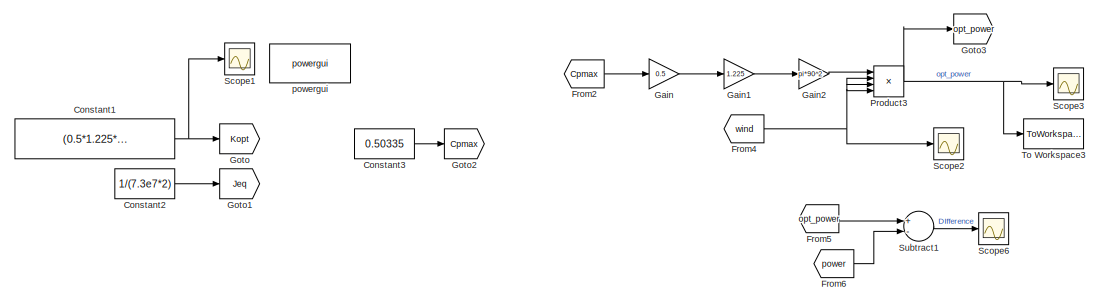
[diagram: root canvas - part 1/2, full width, top band]
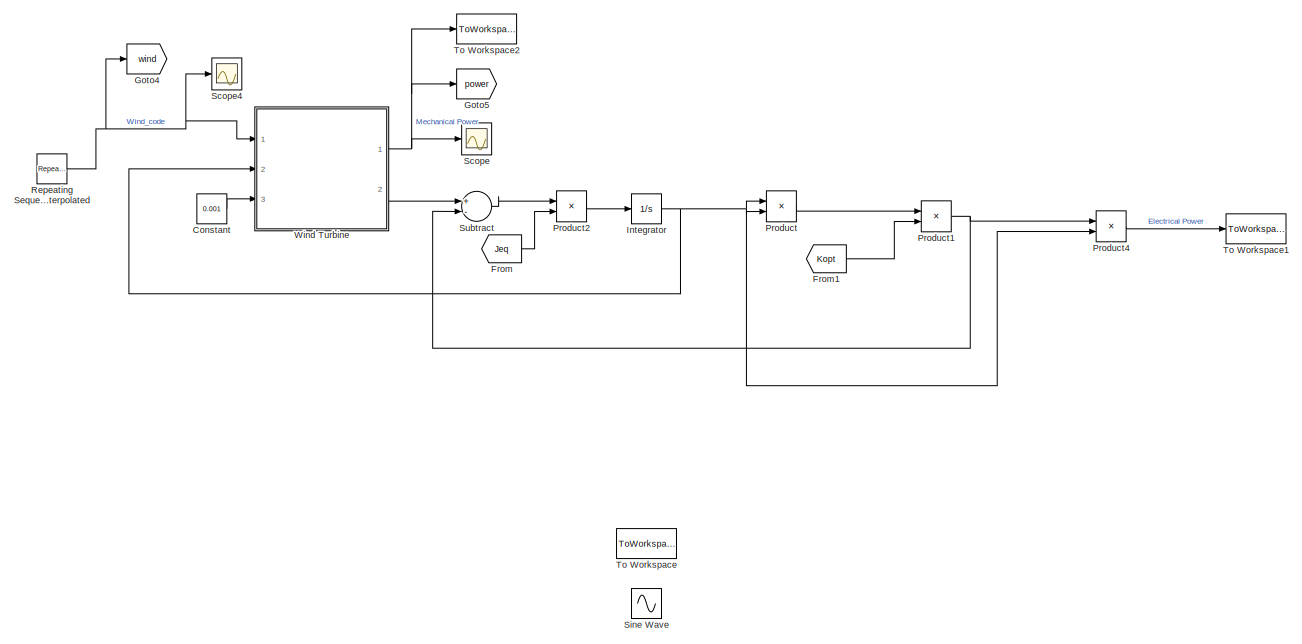
[diagram: root canvas - part 2/2, full width, middle band]
MODEL slx_2063fa68939f
KIND model
CONFIG AbsTol = auto
CONFIG EnableMultiTasking = off
CONFIG FixedStep = 0.1
CONFIG MaxStep = auto
CONFIG MinStep = auto
CONFIG RelTol = 1e-3
CONFIG SampleTimeConstraint = Unconstrained
CONFIG Solver = FixedStepAuto
CONFIG SolverName = FixedStepAuto
CONFIG StartTime = 0.0
CONFIG StopTime = 3600
BLOCK [Constant] Constant
  Value = 0.001
BLOCK [Constant] Constant1
  Value = (0.5*1.225*pi*(90^5)*0.5/(9.559^3))*0.9
BLOCK [Constant] Constant2
  Value = 1/(7.3e7*2)
BLOCK [Constant] Constant3
  Value = 0.50335
BLOCK [From] From
  GotoTag = Jeq
BLOCK [From] From1
  GotoTag = Kopt
  TagVisibility = global
BLOCK [From] From2
  GotoTag = Cpmax
BLOCK [From] From4
  GotoTag = wind
BLOCK [From] From5
  GotoTag = opt_power
BLOCK [From] From6
  GotoTag = power
BLOCK [Gain] Gain
  Gain = 0.5
  OutDataTypeStr = Inherit: Inherit via internal rule
  ParamDataTypeStr = Inherit: Inherit via internal rule
  SaturateOnIntegerOverflow = off
BLOCK [Gain] Gain1
  Gain = 1.225
  OutDataTypeStr = Inherit: Inherit via internal rule
  ParamDataTypeStr = Inherit: Inherit via internal rule
  SaturateOnIntegerOverflow = off
BLOCK [Gain] Gain2
  Gain = pi*90^2
  OutDataTypeStr = Inherit: Inherit via internal rule
  ParamDataTypeStr = Inherit: Inherit via internal rule
  SaturateOnIntegerOverflow = off
BLOCK [Goto] Goto
  GotoTag = Kopt
  IconDisplay = Tag and signal name
  TagVisibility = global
BLOCK [Goto] Goto1
  GotoTag = Jeq
BLOCK [Goto] Goto2
  GotoTag = Cpmax
BLOCK [Goto] Goto3
  GotoTag = opt_power
BLOCK [Goto] Goto4
  GotoTag = wind
BLOCK [Goto] Goto5
  GotoTag = power
BLOCK [Integrator] Integrator
  InitialCondition = 6.5043*V(1)/90
  Ports = [1, 1]
BLOCK [Product] Product
  InputSameDT = off
  OutDataTypeStr = Inherit: Inherit via internal rule
  Ports = [2, 1]
  RndMeth = Floor
  SaturateOnIntegerOverflow = off
BLOCK [Product] Product1
  InputSameDT = off
  OutDataTypeStr = Inherit: Inherit via internal rule
  Ports = [2, 1]
  RndMeth = Floor
  SaturateOnIntegerOverflow = off
BLOCK [Product] Product2
  InputSameDT = off
  OutDataTypeStr = Inherit: Inherit via internal rule
  Ports = [2, 1]
  RndMeth = Floor
  SaturateOnIntegerOverflow = off
BLOCK [Product] Product3
  InputSameDT = off
  Inputs = 4
  OutDataTypeStr = Inherit: Inherit via internal rule
  Ports = [4, 1]
  RndMeth = Floor
  SaturateOnIntegerOverflow = off
BLOCK [Product] Product4
  InputSameDT = off
  OutDataTypeStr = Inherit: Inherit via internal rule
  Ports = [2, 1]
  RndMeth = Floor
  SaturateOnIntegerOverflow = off
BLOCK [Reference] Repeating Sequence Interpolated  REF=simulink/Sources/Repeating
Sequence
Interpolated
  Ports = [0, 1]
  SourceBlock = simulink/Sources/Repeating\nSequence\nInterpolated
  SourceProductBaseCode = SL
  SourceProductName = Simulink
  SourceType = Repeating Sequence Interpolated
BLOCK [Scope] Scope
  Floating = off
  NumInputPorts = 1
  Ports = [1]
  ScopeSpecificationString = Simulink.scopes.TimeScopeBlockCfg('CurrentConfiguration', extmgr.ConfigurationSet(extmgr.Configuration('Core','General UI',true),extmgr.Configuration('Core','Source UI',true),extmgr.Configuration('Sources','WiredSimulink',true),extmgr.Configuration('Visuals','Time Domain',true,'SerializedDisplays',{struct('MinYLimReal','-284969.75433','MaxYLimReal','6331853.73557','YLabelReal','','MinYLimMag','   ...<+1396ch>
BLOCK [Scope] Scope1
  Floating = off
  NumInputPorts = 1
  Ports = [1]
  ScopeSpecificationString = Simulink.scopes.TimeScopeBlockCfg('CurrentConfiguration', extmgr.ConfigurationSet(extmgr.Configuration('Core','General UI',true),extmgr.Configuration('Core','Source UI',true),extmgr.Configuration('Sources','WiredSimulink',true,'DataLoggingVariableName','ScopeData1'),extmgr.Configuration('Visuals','Time Domain',true,'SerializedDisplays',{struct('MinYLimReal','6504305.3673','MaxYLimReal','6504320.88...<+1458ch>
BLOCK [Scope] Scope2
  Floating = off
  NumInputPorts = 1
  Ports = [1]
  ScopeSpecificationString = Simulink.scopes.TimeScopeBlockCfg('CurrentConfiguration', extmgr.ConfigurationSet(extmgr.Configuration('Core','General UI',true),extmgr.Configuration('Core','Source UI',true),extmgr.Configuration('Sources','WiredSimulink',true,'DataLoggingVariableName','ScopeData2'),extmgr.Configuration('Visuals','Time Domain',true,'SerializedDisplays',{struct('MinYLimReal','-1.23767','MaxYLimReal','11.23767','YLa...<+1382ch>
BLOCK [Scope] Scope3
  Floating = off
  NumInputPorts = 1
  Ports = [1]
  ScopeSpecificationString = Simulink.scopes.TimeScopeBlockCfg('CurrentConfiguration', extmgr.ConfigurationSet(extmgr.Configuration('Core','General UI',true),extmgr.Configuration('Core','Source UI',true),extmgr.Configuration('Sources','WiredSimulink',true,'DataLoggingVariableName','ScopeData3'),extmgr.Configuration('Visuals','Time Domain',true,'SerializedDisplays',{struct('MinYLimReal','-977766.06619','MaxYLimReal','8799894.6...<+1409ch>
BLOCK [Scope] Scope4
  Floating = off
  NumInputPorts = 1
  Ports = [1]
  ScopeSpecificationString = Simulink.scopes.TimeScopeBlockCfg('CurrentConfiguration', extmgr.ConfigurationSet(extmgr.Configuration('Core','General UI',true),extmgr.Configuration('Core','Source UI',true),extmgr.Configuration('Sources','WiredSimulink',true,'DataLoggingVariableName','ScopeData1'),extmgr.Configuration('Visuals','Time Domain',true,'SerializedDisplays',{struct('MinYLimReal','3.18589','MaxYLimReal','8.78405','YLabe...<+1395ch>
BLOCK [Scope] Scope6
  Floating = off
  NumInputPorts = 1
  Ports = [1]
  ScopeSpecificationString = Simulink.scopes.TimeScopeBlockCfg('CurrentConfiguration', extmgr.ConfigurationSet(extmgr.Configuration('Core','General UI',true),extmgr.Configuration('Core','Source UI',true),extmgr.Configuration('Sources','WiredSimulink',true,'DataLoggingVariableName','ScopeData3'),extmgr.Configuration('Visuals','Time Domain',true),extmgr.Configuration('Tools','Plot Navigation',true),extmgr.Configuration('Tools',...<+40ch>
BLOCK [Sin] Sine Wave
  Amplitude = 3
  Bias = 8
  Commented = on
  Frequency = 2*pi/200
  Ports = [0, 1]
  SampleTime = 0
BLOCK [Sum] Subtract
  InputSameDT = off
  Inputs = +-
  OutDataTypeStr = Inherit: Inherit via internal rule
  Ports = [2, 1]
  SaturateOnIntegerOverflow = off
BLOCK [Sum] Subtract1
  InputSameDT = off
  Inputs = +-
  OutDataTypeStr = Inherit: Inherit via internal rule
  Ports = [2, 1]
  SaturateOnIntegerOverflow = off
BLOCK [ToWorkspace] To Workspace
  Commented = on
  FixptAsFi = on
  MaxDataPoints = inf
  Ports = [1]
  SampleTime = -1
  SaveFormat = Timeseries
  VariableName = simout
BLOCK [ToWorkspace] To Workspace1
  FixptAsFi = on
  MaxDataPoints = inf
  Ports = [1]
  SampleTime = 1
  VariableName = electrical_power
BLOCK [ToWorkspace] To Workspace2
  FixptAsFi = on
  MaxDataPoints = inf
  Ports = [1]
  SampleTime = 1
  VariableName = mechanical_power
BLOCK [ToWorkspace] To Workspace3
  FixptAsFi = on
  MaxDataPoints = inf
  Ports = [1]
  SampleTime = 1
  VariableName = opt_power
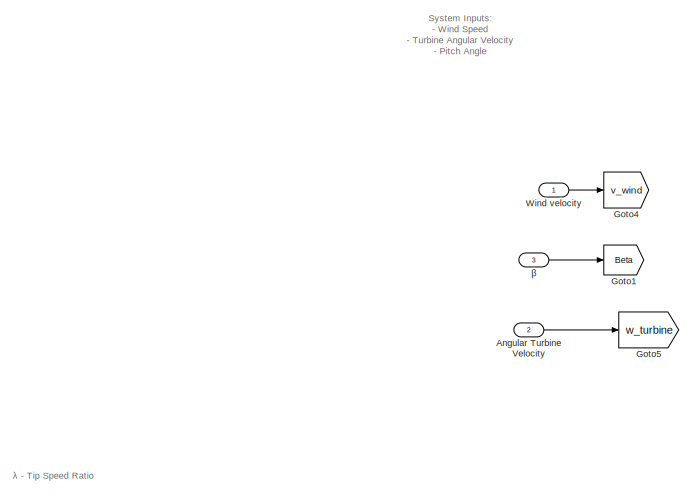
[diagram: Wind Turbine  - part 1/5, top left region]
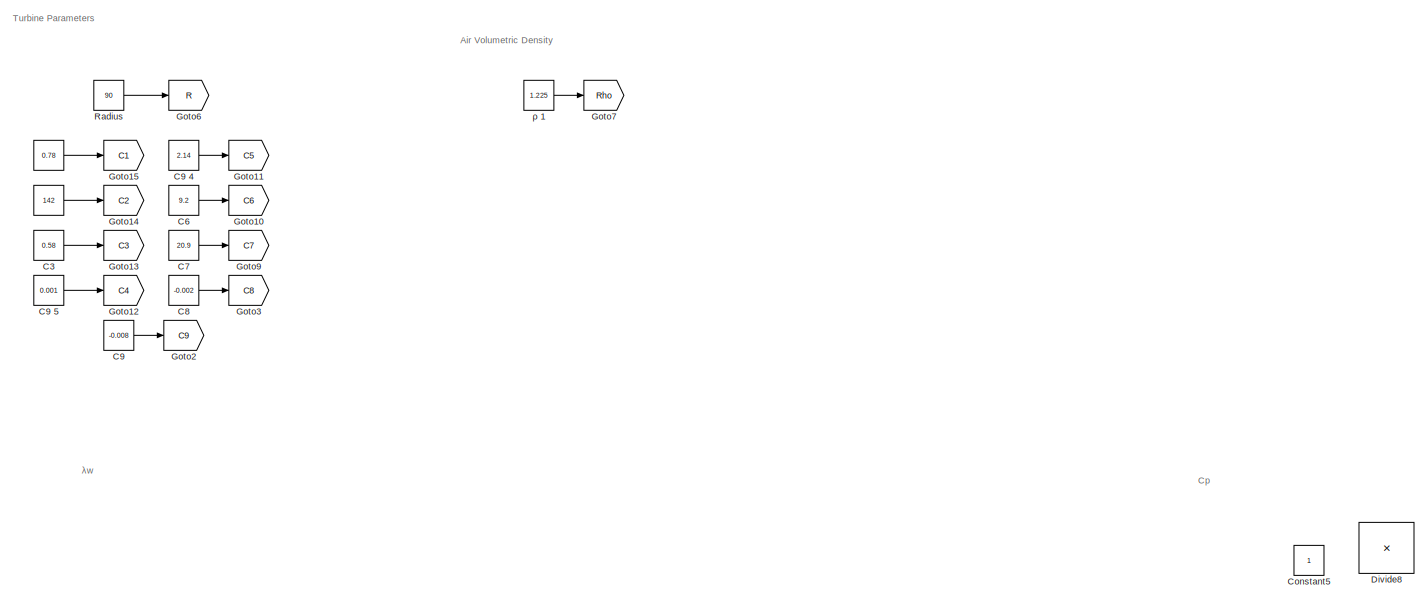
[diagram: Wind Turbine  - part 2/5, top center region]
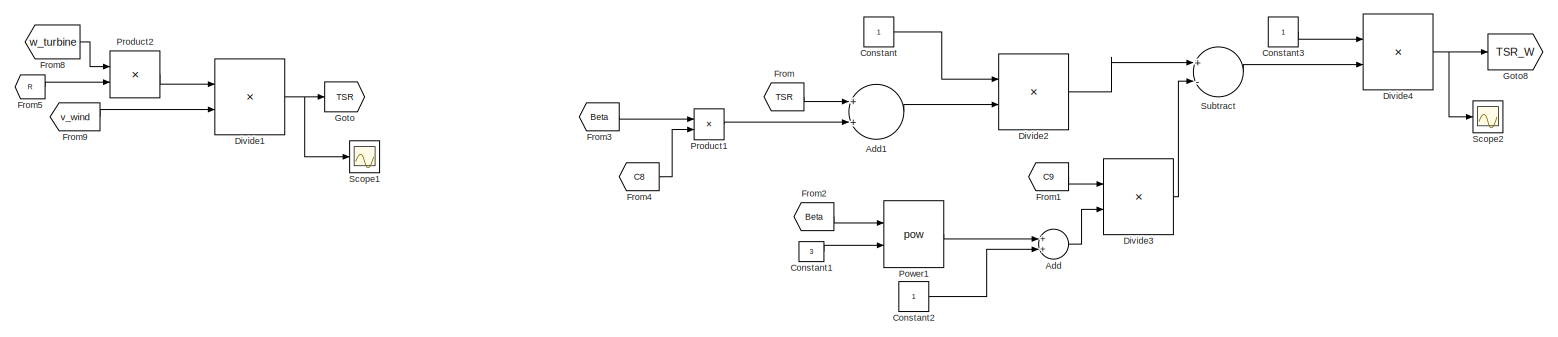
[diagram: Wind Turbine  - part 3/5, middle left region]
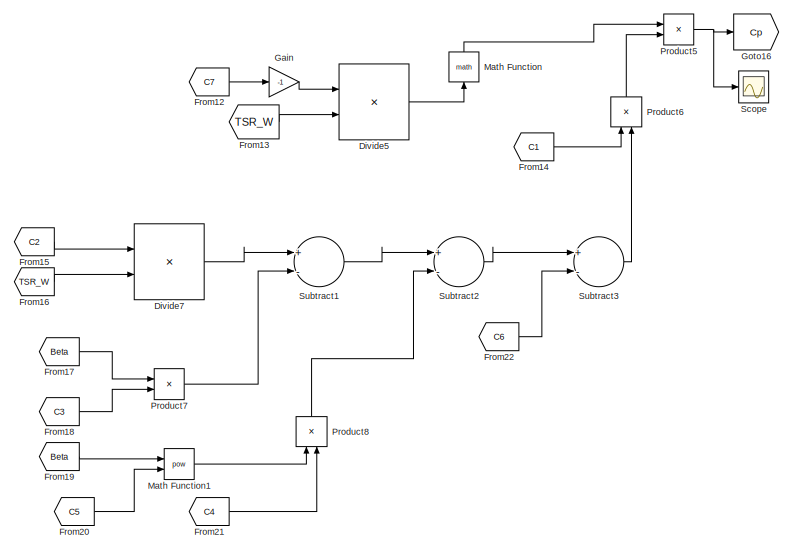
[diagram: Wind Turbine  - part 4/5, middle right region]
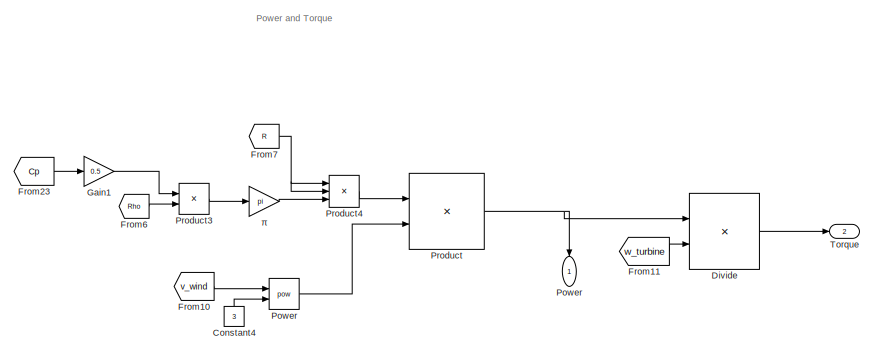
[diagram: Wind Turbine  - part 5/5, bottom center region]
BLOCK [SubSystem] Wind Turbine 
  Ports = [3, 2]
  RequestExecContextInheritance = off
BLOCK [Constant] Wind Turbine / 
  Value = 0.78
BLOCK [Sum] Wind Turbine /Add
  InputSameDT = off
  OutDataTypeStr = Inherit: Inherit via internal rule
  Ports = [2, 1]
  SaturateOnIntegerOverflow = off
BLOCK [Sum] Wind Turbine /Add1
  InputSameDT = off
  OutDataTypeStr = Inherit: Inherit via internal rule
  Ports = [2, 1]
  SaturateOnIntegerOverflow = off
BLOCK [Inport] Wind Turbine /Angular Turbine Velocity 
  IconDisplay = Port number
  Port = 2
BLOCK [Constant] Wind Turbine /C3 
  Value = 0.58
BLOCK [Constant] Wind Turbine /C6 
  Value = 9.2
BLOCK [Constant] Wind Turbine /C7 
  Value = 20.9
BLOCK [Constant] Wind Turbine /C8 
  Value = -0.002
BLOCK [Constant] Wind Turbine /C9 
  Value = -0.008
BLOCK [Constant] Wind Turbine /C9 4
  Value = 2.14
BLOCK [Constant] Wind Turbine /C9 5
  Value = 0.001
BLOCK [Constant] Wind Turbine /Constant
BLOCK [Constant] Wind Turbine /Constant1
  Value = 3
BLOCK [Constant] Wind Turbine /Constant2
BLOCK [Constant] Wind Turbine /Constant3
BLOCK [Constant] Wind Turbine /Constant4
  Value = 3
BLOCK [Constant] Wind Turbine /Constant5
  Commented = on
BLOCK [Product] Wind Turbine /Divide
  InputSameDT = off
  Inputs = */
  OutDataTypeStr = Inherit: Inherit via internal rule
  Ports = [2, 1]
  RndMeth = Floor
  SaturateOnIntegerOverflow = off
BLOCK [Product] Wind Turbine /Divide1
  InputSameDT = off
  Inputs = */
  OutDataTypeStr = Inherit: Inherit via internal rule
  Ports = [2, 1]
  RndMeth = Floor
  SaturateOnIntegerOverflow = off
BLOCK [Product] Wind Turbine /Divide2
  InputSameDT = off
  Inputs = */
  OutDataTypeStr = Inherit: Inherit via internal rule
  Ports = [2, 1]
  RndMeth = Floor
  SaturateOnIntegerOverflow = off
BLOCK [Product] Wind Turbine /Divide3
  InputSameDT = off
  Inputs = */
  OutDataTypeStr = Inherit: Inherit via internal rule
  Ports = [2, 1]
  RndMeth = Floor
  SaturateOnIntegerOverflow = off
BLOCK [Product] Wind Turbine /Divide4
  InputSameDT = off
  Inputs = */
  OutDataTypeStr = Inherit: Inherit via internal rule
  Ports = [2, 1]
  RndMeth = Floor
  SaturateOnIntegerOverflow = off
BLOCK [Product] Wind Turbine /Divide5
  InputSameDT = off
  Inputs = */
  OutDataTypeStr = Inherit: Inherit via internal rule
  Ports = [2, 1]
  RndMeth = Floor
  SaturateOnIntegerOverflow = off
BLOCK [Product] Wind Turbine /Divide7
  InputSameDT = off
  Inputs = */
  OutDataTypeStr = Inherit: Inherit via internal rule
  Ports = [2, 1]
  RndMeth = Floor
  SaturateOnIntegerOverflow = off
BLOCK [Product] Wind Turbine /Divide8
  Commented = on
  InputSameDT = off
  Inputs = */
  OutDataTypeStr = Inherit: Inherit via internal rule
  Ports = [2, 1]
  RndMeth = Floor
  SaturateOnIntegerOverflow = off
BLOCK [From] Wind Turbine /From
  GotoTag = TSR
BLOCK [From] Wind Turbine /From1
  GotoTag = C9
BLOCK [From] Wind Turbine /From10
  GotoTag = v_wind
BLOCK [From] Wind Turbine /From11
  GotoTag = w_turbine
BLOCK [From] Wind Turbine /From12
  GotoTag = C7
BLOCK [From] Wind Turbine /From13
  GotoTag = TSR_W
BLOCK [From] Wind Turbine /From14
  GotoTag = C1
BLOCK [From] Wind Turbine /From15
  GotoTag = C2
BLOCK [From] Wind Turbine /From16
  GotoTag = TSR_W
BLOCK [From] Wind Turbine /From17
  GotoTag = Beta
BLOCK [From] Wind Turbine /From18
  GotoTag = C3
BLOCK [From] Wind Turbine /From19
  GotoTag = Beta
BLOCK [From] Wind Turbine /From2
  GotoTag = Beta
BLOCK [From] Wind Turbine /From20
  GotoTag = C5
BLOCK [From] Wind Turbine /From21
  GotoTag = C4
BLOCK [From] Wind Turbine /From22
  GotoTag = C6
BLOCK [From] Wind Turbine /From23
  GotoTag = Cp
BLOCK [From] Wind Turbine /From3
  GotoTag = Beta
BLOCK [From] Wind Turbine /From4
  GotoTag = C8
BLOCK [From] Wind Turbine /From5
  GotoTag = R
BLOCK [From] Wind Turbine /From6
  GotoTag = Rho
BLOCK [From] Wind Turbine /From7
  GotoTag = R
BLOCK [From] Wind Turbine /From8
  GotoTag = w_turbine
BLOCK [From] Wind Turbine /From9
  GotoTag = v_wind
BLOCK [Gain] Wind Turbine /Gain
  Gain = -1
  OutDataTypeStr = Inherit: Inherit via internal rule
  ParamDataTypeStr = Inherit: Inherit via internal rule
  SaturateOnIntegerOverflow = off
BLOCK [Gain] Wind Turbine /Gain1
  Gain = 0.5
  OutDataTypeStr = Inherit: Inherit via internal rule
  ParamDataTypeStr = Inherit: Inherit via internal rule
  SaturateOnIntegerOverflow = off
BLOCK [Goto] Wind Turbine /Goto
  GotoTag = TSR
BLOCK [Goto] Wind Turbine /Goto1
  GotoTag = Beta
BLOCK [Goto] Wind Turbine /Goto10
  GotoTag = C6
BLOCK [Goto] Wind Turbine /Goto11
  GotoTag = C5
BLOCK [Goto] Wind Turbine /Goto12
  GotoTag = C4
BLOCK [Goto] Wind Turbine /Goto13
  GotoTag = C3
BLOCK [Goto] Wind Turbine /Goto14
  GotoTag = C2
BLOCK [Goto] Wind Turbine /Goto15
  GotoTag = C1
BLOCK [Goto] Wind Turbine /Goto16
  GotoTag = Cp
BLOCK [Goto] Wind Turbine /Goto2
  GotoTag = C9
BLOCK [Goto] Wind Turbine /Goto3
  GotoTag = C8
BLOCK [Goto] Wind Turbine /Goto4
  GotoTag = v_wind
BLOCK [Goto] Wind Turbine /Goto5
  GotoTag = w_turbine
BLOCK [Goto] Wind Turbine /Goto6
  GotoTag = R
BLOCK [Goto] Wind Turbine /Goto7
  GotoTag = Rho
BLOCK [Goto] Wind Turbine /Goto8
  GotoTag = TSR_W
BLOCK [Goto] Wind Turbine /Goto9
  GotoTag = C7
BLOCK [Math] Wind Turbine /Math Function
  Ports = [1, 1]
BLOCK [Math] Wind Turbine /Math Function1
  Operator = pow
  Ports = [2, 1]
BLOCK [Math] Wind Turbine /Power
  Operator = pow
  Ports = [2, 1]
BLOCK [Outport] Wind Turbine /Power 
  IconDisplay = Port number
BLOCK [Math] Wind Turbine /Power1
  Operator = pow
  Ports = [2, 1]
BLOCK [Product] Wind Turbine /Product
  InputSameDT = off
  OutDataTypeStr = Inherit: Inherit via internal rule
  Ports = [2, 1]
  RndMeth = Floor
  SaturateOnIntegerOverflow = off
BLOCK [Product] Wind Turbine /Product1
  InputSameDT = off
  OutDataTypeStr = Inherit: Inherit via internal rule
  Ports = [2, 1]
  RndMeth = Floor
  SaturateOnIntegerOverflow = off
BLOCK [Product] Wind Turbine /Product2
  InputSameDT = off
  OutDataTypeStr = Inherit: Inherit via internal rule
  Ports = [2, 1]
  RndMeth = Floor
  SaturateOnIntegerOverflow = off
BLOCK [Product] Wind Turbine /Product3
  InputSameDT = off
  OutDataTypeStr = Inherit: Inherit via internal rule
  Ports = [2, 1]
  RndMeth = Floor
  SaturateOnIntegerOverflow = off
BLOCK [Product] Wind Turbine /Product4
  InputSameDT = off
  Inputs = 3
  OutDataTypeStr = Inherit: Inherit via internal rule
  Ports = [3, 1]
  RndMeth = Floor
  SaturateOnIntegerOverflow = off
BLOCK [Product] Wind Turbine /Product5
  InputSameDT = off
  OutDataTypeStr = Inherit: Inherit via internal rule
  Ports = [2, 1]
  RndMeth = Floor
  SaturateOnIntegerOverflow = off
BLOCK [Product] Wind Turbine /Product6
  InputSameDT = off
  OutDataTypeStr = Inherit: Inherit via internal rule
  Ports = [2, 1]
  RndMeth = Floor
  SaturateOnIntegerOverflow = off
BLOCK [Product] Wind Turbine /Product7
  InputSameDT = off
  OutDataTypeStr = Inherit: Inherit via internal rule
  Ports = [2, 1]
  RndMeth = Floor
  SaturateOnIntegerOverflow = off
BLOCK [Product] Wind Turbine /Product8
  InputSameDT = off
  OutDataTypeStr = Inherit: Inherit via internal rule
  Ports = [2, 1]
  RndMeth = Floor
  SaturateOnIntegerOverflow = off
BLOCK [Constant] Wind Turbine /Radius 
  Value = 90
BLOCK [Scope] Wind Turbine /Scope
  Floating = off
  NumInputPorts = 1
  Ports = [1]
  ScopeSpecificationString = Simulink.scopes.TimeScopeBlockCfg('CurrentConfiguration', extmgr.ConfigurationSet(extmgr.Configuration('Core','General UI',true),extmgr.Configuration('Core','Source UI',true),extmgr.Configuration('Sources','WiredSimulink',true,'DataLoggingVariableName','ScopeData1'),extmgr.Configuration('Visuals','Time Domain',true,'SerializedDisplays',{struct('MinYLimReal','-0.000000000000000000000000000000000000...<+1719ch>
BLOCK [Scope] Wind Turbine /Scope1
  Floating = off
  NumInputPorts = 1
  Ports = [1]
  ScopeSpecificationString = Simulink.scopes.TimeScopeBlockCfg('CurrentConfiguration', extmgr.ConfigurationSet(extmgr.Configuration('Core','General UI',true),extmgr.Configuration('Core','Source UI',true),extmgr.Configuration('Sources','WiredSimulink',true,'DataLoggingVariableName','ScopeData2'),extmgr.Configuration('Visuals','Time Domain',true,'SerializedDisplays',{struct('MinYLimReal','0.12679','MaxYLimReal','0.18591','YLabe...<+1364ch>
BLOCK [Scope] Wind Turbine /Scope2
  Floating = off
  NumInputPorts = 1
  Ports = [1]
  ScopeSpecificationString = Simulink.scopes.TimeScopeBlockCfg('CurrentConfiguration', extmgr.ConfigurationSet(extmgr.Configuration('Core','General UI',true),extmgr.Configuration('Core','Source UI',true),extmgr.Configuration('Sources','WiredSimulink',true,'DataLoggingVariableName','ScopeData3'),extmgr.Configuration('Visuals','Time Domain',true,'SerializedDisplays',{struct('MinYLimReal','0.12666','MaxYLimReal','0.18564','YLabe...<+1364ch>
BLOCK [Sum] Wind Turbine /Subtract
  InputSameDT = off
  Inputs = +-
  OutDataTypeStr = Inherit: Inherit via internal rule
  Ports = [2, 1]
  SaturateOnIntegerOverflow = off
BLOCK [Sum] Wind Turbine /Subtract1
  InputSameDT = off
  Inputs = +-
  OutDataTypeStr = Inherit: Inherit via internal rule
  Ports = [2, 1]
  SaturateOnIntegerOverflow = off
BLOCK [Sum] Wind Turbine /Subtract2
  InputSameDT = off
  Inputs = +-
  OutDataTypeStr = Inherit: Inherit via internal rule
  Ports = [2, 1]
  SaturateOnIntegerOverflow = off
BLOCK [Sum] Wind Turbine /Subtract3
  InputSameDT = off
  Inputs = +-
  OutDataTypeStr = Inherit: Inherit via internal rule
  Ports = [2, 1]
  SaturateOnIntegerOverflow = off
BLOCK [Outport] Wind Turbine /Torque 
  IconDisplay = Port number
  Port = 2
BLOCK [Inport] Wind Turbine /Wind velocity 
  IconDisplay = Port number
BLOCK [Inport] Wind Turbine /β 
  IconDisplay = Port number
  Port = 3
BLOCK [Gain] Wind Turbine /π
  Gain = pi
  OutDataTypeStr = Inherit: Inherit via internal rule
  ParamDataTypeStr = Inherit: Inherit via internal rule
  SaturateOnIntegerOverflow = off
BLOCK [Constant] Wind Turbine /ρ 1
  Value = 1.225
BLOCK [Reference] powergui  REF=powerlib/powergui
  Ports = []
  Priority = 1
  SourceBlock = powerlib/powergui
  SourceProductBaseCode = PS
  SourceProductName = Simscape Electrical
  SourceType = PSB option menu block
ANNOTATION Wind Turbine : System Inputs: - Wind Speed - Turbine Angular Velocity - Pitch Angle
ANNOTATION Wind Turbine : Air Volumetric Density
ANNOTATION Wind Turbine : Turbine Parameters
ANNOTATION Wind Turbine : Power and Torque
ANNOTATION Wind Turbine : λ - Tip Speed Ratio
ANNOTATION Wind Turbine : Cp
ANNOTATION Wind Turbine : λw
NET Constant1:1 -> Goto:1, Scope1:1
LINE Constant2:1 -> Goto1:1
LINE Constant3:1 -> Goto2:1
LINE Constant:1 -> Wind Turbine :3
LINE From1:1 -> Product1:2
LINE From2:1 -> Gain:1
NET From4:1 -> Product3:2, Product3:3, Product3:4, Scope2:1
LINE From5:1 -> Subtract1:1
LINE From6:1 -> Subtract1:2
LINE From:1 -> Product2:2
LINE Gain1:1 -> Gain2:1
LINE Gain2:1 -> Product3:1
LINE Gain:1 -> Gain1:1
NET Integrator:1 -> Product4:2, Product:1, Product:2, Wind Turbine :2
NET Product1:1 -> Product4:1, Subtract:2
LINE Product2:1 -> Integrator:1
NET Product3:1 -> Goto3:1, Scope3:1, To Workspace3:1
LINE Product4:1 -> To Workspace1:1
LINE Product:1 -> Product1:1
NET Repeating Sequence Interpolated:1 -> Goto4:1, Scope4:1, Wind Turbine :1
LINE Subtract1:1 -> Scope6:1
LINE Subtract:1 -> Product2:1
NET Wind Turbine / :1 -> Wind Turbine /Goto14:1, Wind Turbine /Goto15:1
LINE Wind Turbine /Add1:1 -> Wind Turbine /Divide2:2
LINE Wind Turbine /Add:1 -> Wind Turbine /Divide3:2
LINE Wind Turbine /Angular Turbine Velocity :1 -> Wind Turbine /Goto5:1
LINE Wind Turbine /C3 :1 -> Wind Turbine /Goto13:1
LINE Wind Turbine /C6 :1 -> Wind Turbine /Goto10:1
LINE Wind Turbine /C7 :1 -> Wind Turbine /Goto9:1
LINE Wind Turbine /C8 :1 -> Wind Turbine /Goto3:1
LINE Wind Turbine /C9 4:1 -> Wind Turbine /Goto11:1
LINE Wind Turbine /C9 5:1 -> Wind Turbine /Goto12:1
LINE Wind Turbine /C9 :1 -> Wind Turbine /Goto2:1
LINE Wind Turbine /Constant1:1 -> Wind Turbine /Power1:2
LINE Wind Turbine /Constant2:1 -> Wind Turbine /Add:2
LINE Wind Turbine /Constant3:1 -> Wind Turbine /Divide4:1
LINE Wind Turbine /Constant4:1 -> Wind Turbine /Power:2
LINE Wind Turbine /Constant:1 -> Wind Turbine /Divide2:1
NET Wind Turbine /Divide1:1 -> Wind Turbine /Goto:1, Wind Turbine /Scope1:1
LINE Wind Turbine /Divide2:1 -> Wind Turbine /Subtract:1
LINE Wind Turbine /Divide3:1 -> Wind Turbine /Subtract:2
NET Wind Turbine /Divide4:1 -> Wind Turbine /Goto8:1, Wind Turbine /Scope2:1
LINE Wind Turbine /Divide5:1 -> Wind Turbine /Math Function:1
LINE Wind Turbine /Divide7:1 -> Wind Turbine /Subtract1:1
LINE Wind Turbine /Divide:1 -> Wind Turbine /Torque :1
LINE Wind Turbine /From10:1 -> Wind Turbine /Power:1
LINE Wind Turbine /From11:1 -> Wind Turbine /Divide:2
LINE Wind Turbine /From12:1 -> Wind Turbine /Gain:1
LINE Wind Turbine /From13:1 -> Wind Turbine /Divide5:2
LINE Wind Turbine /From14:1 -> Wind Turbine /Product6:1
LINE Wind Turbine /From15:1 -> Wind Turbine /Divide7:1
LINE Wind Turbine /From16:1 -> Wind Turbine /Divide7:2
LINE Wind Turbine /From17:1 -> Wind Turbine /Product7:1
LINE Wind Turbine /From18:1 -> Wind Turbine /Product7:2
LINE Wind Turbine /From19:1 -> Wind Turbine /Math Function1:1
LINE Wind Turbine /From1:1 -> Wind Turbine /Divide3:1
LINE Wind Turbine /From20:1 -> Wind Turbine /Math Function1:2
LINE Wind Turbine /From21:1 -> Wind Turbine /Product8:2
LINE Wind Turbine /From22:1 -> Wind Turbine /Subtract3:2
LINE Wind Turbine /From23:1 -> Wind Turbine /Gain1:1
LINE Wind Turbine /From2:1 -> Wind Turbine /Power1:1
LINE Wind Turbine /From3:1 -> Wind Turbine /Product1:1
LINE Wind Turbine /From4:1 -> Wind Turbine /Product1:2
LINE Wind Turbine /From5:1 -> Wind Turbine /Product2:2
LINE Wind Turbine /From6:1 -> Wind Turbine /Product3:2
NET Wind Turbine /From7:1 -> Wind Turbine /Product4:1, Wind Turbine /Product4:2
LINE Wind Turbine /From8:1 -> Wind Turbine /Product2:1
LINE Wind Turbine /From9:1 -> Wind Turbine /Divide1:2
LINE Wind Turbine /From:1 -> Wind Turbine /Add1:1
LINE Wind Turbine /Gain1:1 -> Wind Turbine /Product3:1
LINE Wind Turbine /Gain:1 -> Wind Turbine /Divide5:1
LINE Wind Turbine /Math Function1:1 -> Wind Turbine /Product8:1
LINE Wind Turbine /Math Function:1 -> Wind Turbine /Product5:1
LINE Wind Turbine /Power1:1 -> Wind Turbine /Add:1
LINE Wind Turbine /Power:1 -> Wind Turbine /Product:2
LINE Wind Turbine /Product1:1 -> Wind Turbine /Add1:2
LINE Wind Turbine /Product2:1 -> Wind Turbine /Divide1:1
LINE Wind Turbine /Product3:1 -> Wind Turbine /π:1
LINE Wind Turbine /Product4:1 -> Wind Turbine /Product:1
NET Wind Turbine /Product5:1 -> Wind Turbine /Goto16:1, Wind Turbine /Scope:1
LINE Wind Turbine /Product6:1 -> Wind Turbine /Product5:2
LINE Wind Turbine /Product7:1 -> Wind Turbine /Subtract1:2
LINE Wind Turbine /Product8:1 -> Wind Turbine /Subtract2:2
NET Wind Turbine /Product:1 -> Wind Turbine /Divide:1, Wind Turbine /Power :1
LINE Wind Turbine /Radius :1 -> Wind Turbine /Goto6:1
LINE Wind Turbine /Subtract1:1 -> Wind Turbine /Subtract2:1
LINE Wind Turbine /Subtract2:1 -> Wind Turbine /Subtract3:1
LINE Wind Turbine /Subtract3:1 -> Wind Turbine /Product6:2
LINE Wind Turbine /Subtract:1 -> Wind Turbine /Divide4:2
LINE Wind Turbine /Wind velocity :1 -> Wind Turbine /Goto4:1
LINE Wind Turbine /β :1 -> Wind Turbine /Goto1:1
LINE Wind Turbine /π:1 -> Wind Turbine /Product4:3
LINE Wind Turbine /ρ 1:1 -> Wind Turbine /Goto7:1
NET Wind Turbine :1 -> Goto5:1, Scope:1, To Workspace2:1
LINE Wind Turbine :2 -> Subtract:1
note: NET lines group one-source signal fan-out (src -> all destinations, sorted); 1:1 wires keep LINE
